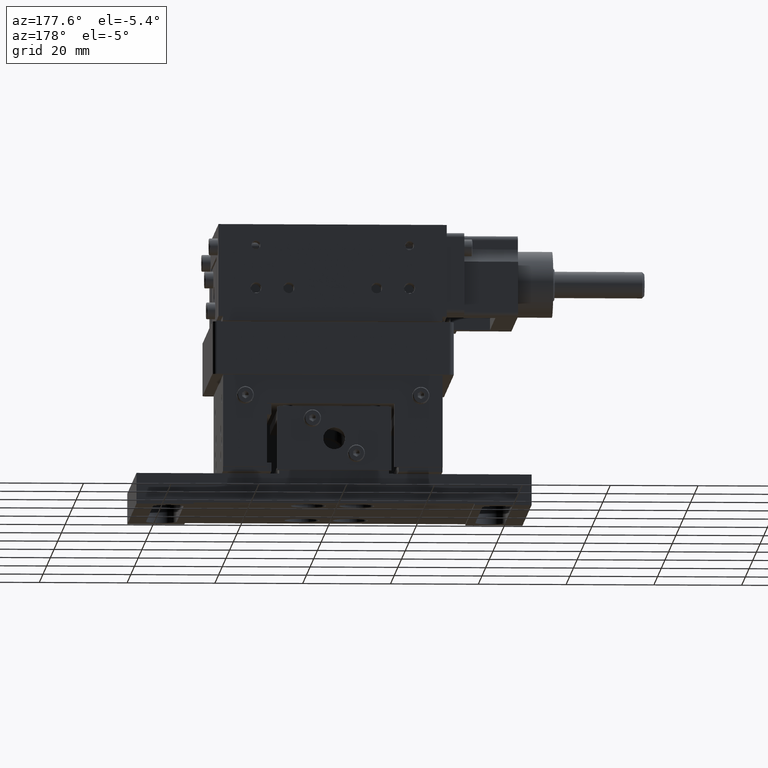
[diagram: clean part render]
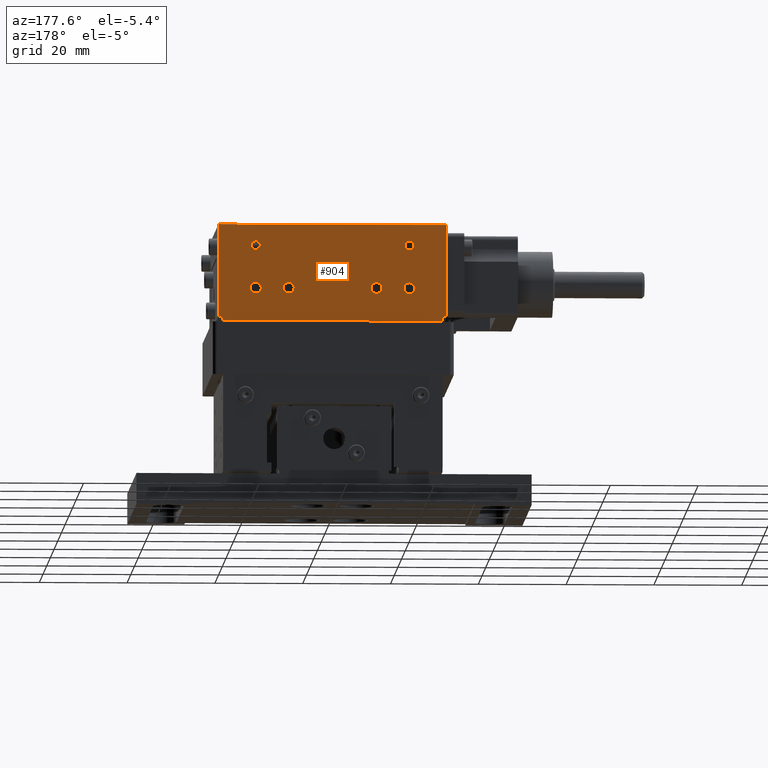
[diagram: same view with one face highlighted and labeled with its STEP entity id]
A machine part, auxiliary view. The second image highlights one B-rep face of the part: STEP entity #904.
In plain terms, the highlighted face is a freeform B-spline surface patch.
Its self-contained STEP definition (entity closure, byte-faithful):
#652=FACE_BOUND('',#3305,.T.);
#653=FACE_BOUND('',#3306,.T.);
#654=FACE_BOUND('',#3307,.T.);
#655=FACE_BOUND('',#3308,.T.);
#656=FACE_BOUND('',#3309,.T.);
#657=FACE_BOUND('',#3310,.T.);
#904=ADVANCED_FACE('',(#2088,#652,#653,#654,#655,#656,#657),#38479,.T.);
#2088=FACE_OUTER_BOUND('',#3304,.T.);
#3304=EDGE_LOOP('',(#5050,#5051,#5052,#5053,#5054,#5055,#5056,#5057));
#3305=EDGE_LOOP('',(#5058,#5059));
#3306=EDGE_LOOP('',(#5060,#5061));
#3307=EDGE_LOOP('',(#5062,#5063));
#3308=EDGE_LOOP('',(#5064,#5065));
#3309=EDGE_LOOP('',(#5066,#5067));
#3310=EDGE_LOOP('',(#5068,#5069));
#5050=ORIENTED_EDGE('',*,*,#31698,.F.);
#5051=ORIENTED_EDGE('',*,*,#31749,.T.);
#5052=ORIENTED_EDGE('',*,*,#31750,.T.);
#5053=ORIENTED_EDGE('',*,*,#31751,.T.);
#5054=ORIENTED_EDGE('',*,*,#31752,.T.);
#5055=ORIENTED_EDGE('',*,*,#31753,.T.);
#5056=ORIENTED_EDGE('',*,*,#31754,.T.);
#5057=ORIENTED_EDGE('',*,*,#31755,.T.);
#5058=ORIENTED_EDGE('',*,*,#31756,.T.);
#5059=ORIENTED_EDGE('',*,*,#31757,.T.);
#5060=ORIENTED_EDGE('',*,*,#31758,.T.);
#5061=ORIENTED_EDGE('',*,*,#31759,.T.);
#5062=ORIENTED_EDGE('',*,*,#31760,.T.);
#5063=ORIENTED_EDGE('',*,*,#31761,.T.);
#5064=ORIENTED_EDGE('',*,*,#31762,.T.);
#5065=ORIENTED_EDGE('',*,*,#31763,.T.);
#5066=ORIENTED_EDGE('',*,*,#31764,.T.);
#5067=ORIENTED_EDGE('',*,*,#31765,.T.);
#5068=ORIENTED_EDGE('',*,*,#31766,.T.);
#5069=ORIENTED_EDGE('',*,*,#31767,.T.);
#10777=PCURVE('',#38477,#16556);
#10829=PCURVE('',#38479,#16608);
#10830=PCURVE('',#38479,#16609);
#10831=PCURVE('',#38479,#16610);
#10832=PCURVE('',#38479,#16611);
#10833=PCURVE('',#38479,#16612);
#10834=PCURVE('',#38479,#16613);
#10835=PCURVE('',#38479,#16614);
#10836=PCURVE('',#38479,#16615);
#10837=PCURVE('',#38479,#16616);
#10838=PCURVE('',#38479,#16617);
#10839=PCURVE('',#38479,#16618);
#10840=PCURVE('',#38479,#16619);
#10841=PCURVE('',#38479,#16620);
#10842=PCURVE('',#38479,#16621);
#10843=PCURVE('',#38479,#16622);
#10844=PCURVE('',#38479,#16623);
#10845=PCURVE('',#38479,#16624);
#10846=PCURVE('',#38479,#16625);
#10847=PCURVE('',#38479,#16626);
#10848=PCURVE('',#38479,#16627);
#10854=PCURVE('',#38481,#16633);
#10909=PCURVE('',#38486,#16688);
#11075=PCURVE('',#38999,#16854);
#11084=PCURVE('',#39000,#16863);
#11090=PCURVE('',#39001,#16869);
#11098=PCURVE('',#39002,#16877);
#11154=PCURVE('',#39012,#16933);
#11156=PCURVE('',#39013,#16935);
#11189=PCURVE('',#39019,#16968);
#11191=PCURVE('',#39020,#16970);
#11335=PCURVE('',#39051,#17114);
#11339=PCURVE('',#39052,#17118);
#11342=PCURVE('',#38496,#17121);
#11360=PCURVE('',#38500,#17139);
#11387=PCURVE('',#38506,#17166);
#11430=PCURVE('',#38512,#17209);
#11443=PCURVE('',#38514,#17222);
#11526=PCURVE('',#39062,#17305);
#11530=PCURVE('',#39063,#17309);
#16556=DEFINITIONAL_REPRESENTATION('',(#22403),#87459);
#16608=DEFINITIONAL_REPRESENTATION('',(#22425),#87459);
#16609=DEFINITIONAL_REPRESENTATION('',(#22427),#87459);
#16610=DEFINITIONAL_REPRESENTATION('',(#22429),#87459);
#16611=DEFINITIONAL_REPRESENTATION('',(#22431),#87459);
#16612=DEFINITIONAL_REPRESENTATION('',(#22433),#87459);
#16613=DEFINITIONAL_REPRESENTATION('',(#22435),#87459);
#16614=DEFINITIONAL_REPRESENTATION('',(#22437),#87459);
#16615=DEFINITIONAL_REPRESENTATION('',(#22439),#87459);
#16616=DEFINITIONAL_REPRESENTATION('',(#34661),#87459);
#16617=DEFINITIONAL_REPRESENTATION('',(#34663),#87459);
#16618=DEFINITIONAL_REPRESENTATION('',(#34665),#87459);
#16619=DEFINITIONAL_REPRESENTATION('',(#34667),#87459);
#16620=DEFINITIONAL_REPRESENTATION('',(#34669),#87459);
#16621=DEFINITIONAL_REPRESENTATION('',(#34671),#87459);
#16622=DEFINITIONAL_REPRESENTATION('',(#34673),#87459);
#16623=DEFINITIONAL_REPRESENTATION('',(#34675),#87459);
#16624=DEFINITIONAL_REPRESENTATION('',(#34677),#87459);
#16625=DEFINITIONAL_REPRESENTATION('',(#34679),#87459);
#16626=DEFINITIONAL_REPRESENTATION('',(#34681),#87459);
#16627=DEFINITIONAL_REPRESENTATION('',(#34683),#87459);
#16633=DEFINITIONAL_REPRESENTATION('',(#22449),#87459);
#16688=DEFINITIONAL_REPRESENTATION('',(#22505),#87459);
#16854=DEFINITIONAL_REPRESENTATION('',(#22713),#87459);
#16863=DEFINITIONAL_REPRESENTATION('',(#22728),#87459);
#16869=DEFINITIONAL_REPRESENTATION('',(#22736),#87459);
#16877=DEFINITIONAL_REPRESENTATION('',(#22749),#87459);
#16933=DEFINITIONAL_REPRESENTATION('',(#22825),#87459);
#16935=DEFINITIONAL_REPRESENTATION('',(#22827),#87459);
#16968=DEFINITIONAL_REPRESENTATION('',(#22870),#87459);
#16970=DEFINITIONAL_REPRESENTATION('',(#22872),#87459);
#17114=DEFINITIONAL_REPRESENTATION('',(#23063),#87459);
#17118=DEFINITIONAL_REPRESENTATION('',(#23069),#87459);
#17121=DEFINITIONAL_REPRESENTATION('',(#23074),#87459);
#17139=DEFINITIONAL_REPRESENTATION('',(#23098),#87459);
#17166=DEFINITIONAL_REPRESENTATION('',(#23128),#87459);
#17209=DEFINITIONAL_REPRESENTATION('',(#23174),#87459);
#17222=DEFINITIONAL_REPRESENTATION('',(#23184),#87459);
#17305=DEFINITIONAL_REPRESENTATION('',(#23265),#87459);
#17309=DEFINITIONAL_REPRESENTATION('',(#23269),#87459);
#22402=B_SPLINE_CURVE_WITH_KNOTS('',1,(#44672,#44673),.UNSPECIFIED.,.F.,
 .F.,(2,2),(0.,51.9999999999997),.UNSPECIFIED.);
#22403=B_SPLINE_CURVE_WITH_KNOTS('',1,(#44674,#44675),.UNSPECIFIED.,.F.,
 .F.,(2,2),(0.,51.9999999999997),.UNSPECIFIED.);
#22425=B_SPLINE_CURVE_WITH_KNOTS('',1,(#45118,#45119),.UNSPECIFIED.,.F.,
 .F.,(2,2),(0.,51.9999999999997),.UNSPECIFIED.);
#22426=B_SPLINE_CURVE_WITH_KNOTS('',1,(#45120,#45121),.UNSPECIFIED.,.F.,
 .F.,(2,2),(0.,21.),.UNSPECIFIED.);
#22427=B_SPLINE_CURVE_WITH_KNOTS('',1,(#45122,#45123),.UNSPECIFIED.,.F.,
 .F.,(2,2),(0.,21.),.UNSPECIFIED.);
#22428=B_SPLINE_CURVE_WITH_KNOTS('',1,(#45124,#45125),.UNSPECIFIED.,.F.,
 .F.,(2,2),(0.,1.),.UNSPECIFIED.);
#22429=B_SPLINE_CURVE_WITH_KNOTS('',1,(#45126,#45127),.UNSPECIFIED.,.F.,
 .F.,(2,2),(0.,1.),.UNSPECIFIED.);
#22430=B_SPLINE_CURVE_WITH_KNOTS('',1,(#45128,#45129),.UNSPECIFIED.,.F.,
 .F.,(2,2),(-0.999999999999901,0.),.UNSPECIFIED.);
#22431=B_SPLINE_CURVE_WITH_KNOTS('',1,(#45130,#45131),.UNSPECIFIED.,.F.,
 .F.,(2,2),(-0.999999999999901,0.),.UNSPECIFIED.);
#22432=B_SPLINE_CURVE_WITH_KNOTS('',1,(#45132,#45133),.UNSPECIFIED.,.F.,
 .F.,(2,2),(-50.,0.),.UNSPECIFIED.);
#22433=B_SPLINE_CURVE_WITH_KNOTS('',1,(#45134,#45135),.UNSPECIFIED.,.F.,
 .F.,(2,2),(-50.,0.),.UNSPECIFIED.);
#22434=B_SPLINE_CURVE_WITH_KNOTS('',1,(#45136,#45137),.UNSPECIFIED.,.F.,
 .F.,(2,2),(0.,1.),.UNSPECIFIED.);
#22435=B_SPLINE_CURVE_WITH_KNOTS('',1,(#45138,#45139),.UNSPECIFIED.,.F.,
 .F.,(2,2),(0.,1.),.UNSPECIFIED.);
#22436=B_SPLINE_CURVE_WITH_KNOTS('',1,(#45140,#45141),.UNSPECIFIED.,.F.,
 .F.,(2,2),(0.,1.),.UNSPECIFIED.);
#22437=B_SPLINE_CURVE_WITH_KNOTS('',1,(#45142,#45143),.UNSPECIFIED.,.F.,
 .F.,(2,2),(0.,1.),.UNSPECIFIED.);
#22438=B_SPLINE_CURVE_WITH_KNOTS('',1,(#45144,#45145),.UNSPECIFIED.,.F.,
 .F.,(2,2),(0.,21.),.UNSPECIFIED.);
#22439=B_SPLINE_CURVE_WITH_KNOTS('',1,(#45146,#45147),.UNSPECIFIED.,.F.,
 .F.,(2,2),(0.,21.),.UNSPECIFIED.);
#22449=B_SPLINE_CURVE_WITH_KNOTS('',1,(#45286,#45287),.UNSPECIFIED.,.F.,
 .F.,(2,2),(-50.,0.),.UNSPECIFIED.);
#22505=B_SPLINE_CURVE_WITH_KNOTS('',1,(#45638,#45639),.UNSPECIFIED.,.F.,
 .F.,(2,2),(-0.999999999999901,0.),.UNSPECIFIED.);
#22713=B_SPLINE_CURVE_WITH_KNOTS('',1,(#46186,#46187),.UNSPECIFIED.,.F.,
 .F.,(2,2),(1.93129408379433,7.7251763351773),.UNSPECIFIED.);
#22728=B_SPLINE_CURVE_WITH_KNOTS('',1,(#46265,#46266),.UNSPECIFIED.,.F.,
 .F.,(2,2),(0.,1.93129408379433),.UNSPECIFIED.);
#22736=B_SPLINE_CURVE_WITH_KNOTS('',1,(#46296,#46297),.UNSPECIFIED.,.F.,
 .F.,(2,2),(1.93129408379431,7.7251763351773),.UNSPECIFIED.);
#22749=B_SPLINE_CURVE_WITH_KNOTS('',1,(#46367,#46368),.UNSPECIFIED.,.F.,
 .F.,(2,2),(0.,1.93129408379431),.UNSPECIFIED.);
#22825=B_SPLINE_CURVE_WITH_KNOTS('',1,(#46659,#46660),.UNSPECIFIED.,.F.,
 .F.,(2,2),(1.57079632679489,6.28318530717959),.UNSPECIFIED.);
#22827=B_SPLINE_CURVE_WITH_KNOTS('',1,(#46663,#46664),.UNSPECIFIED.,.F.,
 .F.,(2,2),(0.,1.57079632679489),.UNSPECIFIED.);
#22870=B_SPLINE_CURVE_WITH_KNOTS('',1,(#46812,#46813),.UNSPECIFIED.,.F.,
 .F.,(2,2),(1.5707963267949,6.28318530717959),.UNSPECIFIED.);
#22872=B_SPLINE_CURVE_WITH_KNOTS('',1,(#46816,#46817),.UNSPECIFIED.,.F.,
 .F.,(2,2),(0.,1.5707963267949),.UNSPECIFIED.);
#23063=B_SPLINE_CURVE_WITH_KNOTS('',1,(#47599,#47600),.UNSPECIFIED.,.F.,
 .F.,(2,2),(3.86415896391544,7.72831792783089),.UNSPECIFIED.);
#23069=B_SPLINE_CURVE_WITH_KNOTS('',1,(#47616,#47617),.UNSPECIFIED.,.F.,
 .F.,(2,2),(3.86415896391545,7.72831792783089),.UNSPECIFIED.);
#23074=B_SPLINE_CURVE_WITH_KNOTS('',1,(#47626,#47627),.UNSPECIFIED.,.F.,
 .F.,(2,2),(0.,1.),.UNSPECIFIED.);
#23098=B_SPLINE_CURVE_WITH_KNOTS('',1,(#47674,#47675),.UNSPECIFIED.,.F.,
 .F.,(2,2),(0.,1.),.UNSPECIFIED.);
#23128=B_SPLINE_CURVE_WITH_KNOTS('',1,(#47754,#47755),.UNSPECIFIED.,.F.,
 .F.,(2,2),(0.,21.),.UNSPECIFIED.);
#23174=B_SPLINE_CURVE_WITH_KNOTS('',1,(#47878,#47879),.UNSPECIFIED.,.F.,
 .F.,(2,2),(0.,21.),.UNSPECIFIED.);
#23184=B_SPLINE_CURVE_WITH_KNOTS('',1,(#47938,#47939),.UNSPECIFIED.,.F.,
 .F.,(2,2),(0.,1.),.UNSPECIFIED.);
#23265=B_SPLINE_CURVE_WITH_KNOTS('',1,(#48242,#48243),.UNSPECIFIED.,.F.,
 .F.,(2,2),(0.,3.86415896391544),.UNSPECIFIED.);
#23269=B_SPLINE_CURVE_WITH_KNOTS('',1,(#48250,#48251),.UNSPECIFIED.,.F.,
 .F.,(2,2),(0.,3.86415896391545),.UNSPECIFIED.);
#28749=SURFACE_CURVE('',#22402,(#10777,#10829),.PCURVE_S1.);
#28800=SURFACE_CURVE('',#22426,(#10830,#11430),.PCURVE_S1.);
#28801=SURFACE_CURVE('',#22428,(#10831,#11443),.PCURVE_S1.);
#28802=SURFACE_CURVE('',#22430,(#10832,#10909),.PCURVE_S1.);
#28803=SURFACE_CURVE('',#22432,(#10833,#10854),.PCURVE_S1.);
#28804=SURFACE_CURVE('',#22434,(#10834,#11342),.PCURVE_S1.);
#28805=SURFACE_CURVE('',#22436,(#10835,#11360),.PCURVE_S1.);
#28806=SURFACE_CURVE('',#22438,(#10836,#11387),.PCURVE_S1.);
#28807=SURFACE_CURVE('',#34660,(#10837,#11530),.PCURVE_S1.);
#28808=SURFACE_CURVE('',#34662,(#10838,#11339),.PCURVE_S1.);
#28809=SURFACE_CURVE('',#34664,(#10839,#11526),.PCURVE_S1.);
#28810=SURFACE_CURVE('',#34666,(#10840,#11335),.PCURVE_S1.);
#28811=SURFACE_CURVE('',#34668,(#10841,#11098),.PCURVE_S1.);
#28812=SURFACE_CURVE('',#34670,(#10842,#11090),.PCURVE_S1.);
#28813=SURFACE_CURVE('',#34672,(#10843,#11084),.PCURVE_S1.);
#28814=SURFACE_CURVE('',#34674,(#10844,#11075),.PCURVE_S1.);
#28815=SURFACE_CURVE('',#34676,(#10845,#11191),.PCURVE_S1.);
#28816=SURFACE_CURVE('',#34678,(#10846,#11189),.PCURVE_S1.);
#28817=SURFACE_CURVE('',#34680,(#10847,#11156),.PCURVE_S1.);
#28818=SURFACE_CURVE('',#34682,(#10848,#11154),.PCURVE_S1.);
#31698=EDGE_CURVE('',#36685,#36688,#28749,.T.);
#31749=EDGE_CURVE('',#36685,#36736,#28800,.T.);
#31750=EDGE_CURVE('',#36736,#36735,#28801,.T.);
#31751=EDGE_CURVE('',#36735,#36750,#28802,.T.);
#31752=EDGE_CURVE('',#36750,#36739,#28803,.T.);
#31753=EDGE_CURVE('',#36739,#36738,#28804,.T.);
#31754=EDGE_CURVE('',#36738,#36737,#28805,.T.);
#31755=EDGE_CURVE('',#36737,#36688,#28806,.T.);
#31756=EDGE_CURVE('',#36740,#36923,#28807,.T.);
#31757=EDGE_CURVE('',#36923,#36740,#28808,.T.);
#31758=EDGE_CURVE('',#36741,#36921,#28809,.T.);
#31759=EDGE_CURVE('',#36921,#36741,#28810,.T.);
#31760=EDGE_CURVE('',#36746,#36747,#28811,.T.);
#31761=EDGE_CURVE('',#36747,#36746,#28812,.T.);
#31762=EDGE_CURVE('',#36748,#36749,#28813,.T.);
#31763=EDGE_CURVE('',#36749,#36748,#28814,.T.);
#31764=EDGE_CURVE('',#36742,#36743,#28815,.T.);
#31765=EDGE_CURVE('',#36743,#36742,#28816,.T.);
#31766=EDGE_CURVE('',#36744,#36745,#28817,.T.);
#31767=EDGE_CURVE('',#36745,#36744,#28818,.T.);
#34660=(
BOUNDED_CURVE()
B_SPLINE_CURVE(2,(#45148,#45149,#45150,#45151,#45152),.UNSPECIFIED.,.F.,
 .F.)
B_SPLINE_CURVE_WITH_KNOTS((3,2,3),(0.,1.93207948195772,3.86415896391545),
 .UNSPECIFIED.)
CURVE()
GEOMETRIC_REPRESENTATION_ITEM()
RATIONAL_B_SPLINE_CURVE((1.,0.707106781186546,1.,0.707106781186545,1.))
REPRESENTATION_ITEM('')
);
#34661=(
BOUNDED_CURVE()
B_SPLINE_CURVE(2,(#45153,#45154,#45155,#45156,#45157),.UNSPECIFIED.,.F.,
 .F.)
B_SPLINE_CURVE_WITH_KNOTS((3,2,3),(0.,1.93207994260142,3.86415896391545),
 .UNSPECIFIED.)
CURVE()
GEOMETRIC_REPRESENTATION_ITEM()
RATIONAL_B_SPLINE_CURVE((1.,0.707106781186548,1.,0.707107019605091,1.))
REPRESENTATION_ITEM('')
);
#34662=(
BOUNDED_CURVE()
B_SPLINE_CURVE(2,(#45158,#45159,#45160,#45161,#45162),.UNSPECIFIED.,.F.,
 .F.)
B_SPLINE_CURVE_WITH_KNOTS((3,2,3),(3.86415896391545,5.79623844587317,7.72831792783089),
 .UNSPECIFIED.)
CURVE()
GEOMETRIC_REPRESENTATION_ITEM()
RATIONAL_B_SPLINE_CURVE((1.,0.70710678118655,1.,0.707106781186549,1.))
REPRESENTATION_ITEM('')
);
#34663=(
BOUNDED_CURVE()
B_SPLINE_CURVE(2,(#45163,#45164,#45165,#45166,#45167),.UNSPECIFIED.,.F.,
 .F.)
B_SPLINE_CURVE_WITH_KNOTS((3,2,3),(3.86415896391545,5.79623844587317,7.72831792783089),
 .UNSPECIFIED.)
CURVE()
GEOMETRIC_REPRESENTATION_ITEM()
RATIONAL_B_SPLINE_CURVE((1.,0.707106781186548,1.,0.707106781186548,1.))
REPRESENTATION_ITEM('')
);
#34664=(
BOUNDED_CURVE()
B_SPLINE_CURVE(2,(#45168,#45169,#45170,#45171,#45172),.UNSPECIFIED.,.F.,
 .F.)
B_SPLINE_CURVE_WITH_KNOTS((3,2,3),(0.,1.93207948195772,3.86415896391544),
 .UNSPECIFIED.)
CURVE()
GEOMETRIC_REPRESENTATION_ITEM()
RATIONAL_B_SPLINE_CURVE((1.,0.707106781186546,1.,0.707106781186548,1.))
REPRESENTATION_ITEM('')
);
#34665=(
BOUNDED_CURVE()
B_SPLINE_CURVE(2,(#45173,#45174,#45175,#45176,#45177),.UNSPECIFIED.,.F.,
 .F.)
B_SPLINE_CURVE_WITH_KNOTS((3,2,3),(0.,1.93207948195772,3.86415896391544),
 .UNSPECIFIED.)
CURVE()
GEOMETRIC_REPRESENTATION_ITEM()
RATIONAL_B_SPLINE_CURVE((1.,0.707106781186548,1.,0.70710678118655,1.))
REPRESENTATION_ITEM('')
);
#34666=(
BOUNDED_CURVE()
B_SPLINE_CURVE(2,(#45178,#45179,#45180,#45181,#45182),.UNSPECIFIED.,.F.,
 .F.)
B_SPLINE_CURVE_WITH_KNOTS((3,2,3),(3.86415896391544,5.79623844587317,7.72831792783089),
 .UNSPECIFIED.)
CURVE()
GEOMETRIC_REPRESENTATION_ITEM()
RATIONAL_B_SPLINE_CURVE((1.,0.707106781186548,1.,0.70710678118655,1.))
REPRESENTATION_ITEM('')
);
#34667=(
BOUNDED_CURVE()
B_SPLINE_CURVE(2,(#45183,#45184,#45185,#45186,#45187),.UNSPECIFIED.,.F.,
 .F.)
B_SPLINE_CURVE_WITH_KNOTS((3,2,3),(3.86415896391544,5.79623844587317,7.72831792783089),
 .UNSPECIFIED.)
CURVE()
GEOMETRIC_REPRESENTATION_ITEM()
RATIONAL_B_SPLINE_CURVE((1.,0.707106781186545,1.,0.707106781186548,1.))
REPRESENTATION_ITEM('')
);
#34668=(
BOUNDED_CURVE()
B_SPLINE_CURVE(2,(#45188,#45189,#45190),.UNSPECIFIED.,.F.,.F.)
B_SPLINE_CURVE_WITH_KNOTS((3,3),(0.,1.93129408379431),.UNSPECIFIED.)
CURVE()
GEOMETRIC_REPRESENTATION_ITEM()
RATIONAL_B_SPLINE_CURVE((1.,0.707106781186545,1.))
REPRESENTATION_ITEM('')
);
#34669=(
BOUNDED_CURVE()
B_SPLINE_CURVE(2,(#45191,#45192,#45193),.UNSPECIFIED.,.F.,.F.)
B_SPLINE_CURVE_WITH_KNOTS((3,3),(0.,1.93129408379431),.UNSPECIFIED.)
CURVE()
GEOMETRIC_REPRESENTATION_ITEM()
RATIONAL_B_SPLINE_CURVE((1.,0.707106781186547,1.))
REPRESENTATION_ITEM('')
);
#34670=(
BOUNDED_CURVE()
B_SPLINE_CURVE(2,(#45194,#45195,#45196,#45197,#45198,#45199,#45200),
 .UNSPECIFIED.,.F.,.F.)
B_SPLINE_CURVE_WITH_KNOTS((3,2,2,3),(1.93129408379431,3.86258816758865,
5.79388225138298,7.7251763351773),.UNSPECIFIED.)
CURVE()
GEOMETRIC_REPRESENTATION_ITEM()
RATIONAL_B_SPLINE_CURVE((1.,0.707106781186543,1.,0.707106781186549,1.,0.707106781186549,
1.))
REPRESENTATION_ITEM('')
);
#34671=(
BOUNDED_CURVE()
B_SPLINE_CURVE(2,(#45201,#45202,#45203,#45204,#45205,#45206,#45207),
 .UNSPECIFIED.,.F.,.F.)
B_SPLINE_CURVE_WITH_KNOTS((3,2,2,3),(1.93129408379431,3.86258816758864,
5.79388225138297,7.7251763351773),.UNSPECIFIED.)
CURVE()
GEOMETRIC_REPRESENTATION_ITEM()
RATIONAL_B_SPLINE_CURVE((1.,0.707106781186548,1.,0.707106781186548,1.,0.707106781186548,
1.))
REPRESENTATION_ITEM('')
);
#34672=(
BOUNDED_CURVE()
B_SPLINE_CURVE(2,(#45208,#45209,#45210),.UNSPECIFIED.,.F.,.F.)
B_SPLINE_CURVE_WITH_KNOTS((3,3),(0.,1.93129408379433),.UNSPECIFIED.)
CURVE()
GEOMETRIC_REPRESENTATION_ITEM()
RATIONAL_B_SPLINE_CURVE((1.,0.707106781186545,1.))
REPRESENTATION_ITEM('')
);
#34673=(
BOUNDED_CURVE()
B_SPLINE_CURVE(2,(#45211,#45212,#45213),.UNSPECIFIED.,.F.,.F.)
B_SPLINE_CURVE_WITH_KNOTS((3,3),(0.,1.93129408379433),.UNSPECIFIED.)
CURVE()
GEOMETRIC_REPRESENTATION_ITEM()
RATIONAL_B_SPLINE_CURVE((1.,0.707106781186548,1.))
REPRESENTATION_ITEM('')
);
#34674=(
BOUNDED_CURVE()
B_SPLINE_CURVE(2,(#45214,#45215,#45216,#45217,#45218,#45219,#45220),
 .UNSPECIFIED.,.F.,.F.)
B_SPLINE_CURVE_WITH_KNOTS((3,2,2,3),(1.93129408379433,3.86258816758865,
5.79388225138298,7.7251763351773),.UNSPECIFIED.)
CURVE()
GEOMETRIC_REPRESENTATION_ITEM()
RATIONAL_B_SPLINE_CURVE((1.,0.707106781186541,1.,0.707106781186549,1.,0.707106781186549,
1.))
REPRESENTATION_ITEM('')
);
#34675=(
BOUNDED_CURVE()
B_SPLINE_CURVE(2,(#45221,#45222,#45223,#45224,#45225,#45226,#45227),
 .UNSPECIFIED.,.F.,.F.)
B_SPLINE_CURVE_WITH_KNOTS((3,2,2,3),(1.93129408379433,3.86258816758865,
5.79388225138298,7.7251763351773),.UNSPECIFIED.)
CURVE()
GEOMETRIC_REPRESENTATION_ITEM()
RATIONAL_B_SPLINE_CURVE((1.,0.707106781186548,1.,0.707106781186548,1.,0.707106781186548,
1.))
REPRESENTATION_ITEM('')
);
#34676=(
BOUNDED_CURVE()
B_SPLINE_CURVE(2,(#45228,#45229,#45230),.UNSPECIFIED.,.F.,.F.)
B_SPLINE_CURVE_WITH_KNOTS((3,3),(0.,1.5707963267949),.UNSPECIFIED.)
CURVE()
GEOMETRIC_REPRESENTATION_ITEM()
RATIONAL_B_SPLINE_CURVE((1.,0.707106781186546,1.))
REPRESENTATION_ITEM('')
);
#34677=(
BOUNDED_CURVE()
B_SPLINE_CURVE(2,(#45231,#45232,#45233),.UNSPECIFIED.,.F.,.F.)
B_SPLINE_CURVE_WITH_KNOTS((3,3),(0.,1.5707963267949),.UNSPECIFIED.)
CURVE()
GEOMETRIC_REPRESENTATION_ITEM()
RATIONAL_B_SPLINE_CURVE((1.,0.707106781186545,1.))
REPRESENTATION_ITEM('')
);
#34678=(
BOUNDED_CURVE()
B_SPLINE_CURVE(2,(#45234,#45235,#45236,#45237,#45238,#45239,#45240),
 .UNSPECIFIED.,.F.,.F.)
B_SPLINE_CURVE_WITH_KNOTS((3,2,2,3),(1.5707963267949,3.14159265358979,4.71238898038469,
6.28318530717959),.UNSPECIFIED.)
CURVE()
GEOMETRIC_REPRESENTATION_ITEM()
RATIONAL_B_SPLINE_CURVE((1.,0.707106781186551,1.,0.707106781186544,1.,0.707106781186544,
1.))
REPRESENTATION_ITEM('')
);
#34679=(
BOUNDED_CURVE()
B_SPLINE_CURVE(2,(#45241,#45242,#45243,#45244,#45245,#45246,#45247),
 .UNSPECIFIED.,.F.,.F.)
B_SPLINE_CURVE_WITH_KNOTS((3,2,2,3),(1.5707963267949,3.14159265358979,4.71238898038469,
6.28318530717959),.UNSPECIFIED.)
CURVE()
GEOMETRIC_REPRESENTATION_ITEM()
RATIONAL_B_SPLINE_CURVE((1.,0.707106781186551,1.,0.707106781186548,1.,0.707106781186548,
1.))
REPRESENTATION_ITEM('')
);
#34680=(
BOUNDED_CURVE()
B_SPLINE_CURVE(2,(#45248,#45249,#45250),.UNSPECIFIED.,.F.,.F.)
B_SPLINE_CURVE_WITH_KNOTS((3,3),(0.,1.57079632679489),.UNSPECIFIED.)
CURVE()
GEOMETRIC_REPRESENTATION_ITEM()
RATIONAL_B_SPLINE_CURVE((1.,0.707106781186551,1.))
REPRESENTATION_ITEM('')
);
#34681=(
BOUNDED_CURVE()
B_SPLINE_CURVE(2,(#45251,#45252,#45253),.UNSPECIFIED.,.F.,.F.)
B_SPLINE_CURVE_WITH_KNOTS((3,3),(0.,1.57079632679489),.UNSPECIFIED.)
CURVE()
GEOMETRIC_REPRESENTATION_ITEM()
RATIONAL_B_SPLINE_CURVE((1.,0.707106781186548,1.))
REPRESENTATION_ITEM('')
);
#34682=(
BOUNDED_CURVE()
B_SPLINE_CURVE(2,(#45254,#45255,#45256,#45257,#45258,#45259,#45260),
 .UNSPECIFIED.,.F.,.F.)
B_SPLINE_CURVE_WITH_KNOTS((3,2,2,3),(1.57079632679489,3.14159265358979,
4.71238898038469,6.28318530717959),.UNSPECIFIED.)
CURVE()
GEOMETRIC_REPRESENTATION_ITEM()
RATIONAL_B_SPLINE_CURVE((1.,0.707106781186544,1.,0.707106781186543,1.,0.707106781186543,
1.))
REPRESENTATION_ITEM('')
);
#34683=(
BOUNDED_CURVE()
B_SPLINE_CURVE(2,(#45261,#45262,#45263,#45264,#45265,#45266,#45267),
 .UNSPECIFIED.,.F.,.F.)
B_SPLINE_CURVE_WITH_KNOTS((3,2,2,3),(1.57079632679489,3.14159265358979,
4.71238898038469,6.28318530717959),.UNSPECIFIED.)
CURVE()
GEOMETRIC_REPRESENTATION_ITEM()
RATIONAL_B_SPLINE_CURVE((1.,0.707106781186548,1.,0.707106781186548,1.,0.707106781186548,
1.))
REPRESENTATION_ITEM('')
);
#36685=VERTEX_POINT('',#42721);
#36688=VERTEX_POINT('',#42724);
#36735=VERTEX_POINT('',#42771);
#36736=VERTEX_POINT('',#42772);
#36737=VERTEX_POINT('',#42773);
#36738=VERTEX_POINT('',#42774);
#36739=VERTEX_POINT('',#42775);
#36740=VERTEX_POINT('',#42776);
#36741=VERTEX_POINT('',#42777);
#36742=VERTEX_POINT('',#42778);
#36743=VERTEX_POINT('',#42779);
#36744=VERTEX_POINT('',#42780);
#36745=VERTEX_POINT('',#42781);
#36746=VERTEX_POINT('',#42782);
#36747=VERTEX_POINT('',#42783);
#36748=VERTEX_POINT('',#42784);
#36749=VERTEX_POINT('',#42785);
#36750=VERTEX_POINT('',#42786);
#36921=VERTEX_POINT('',#42957);
#36923=VERTEX_POINT('',#42959);
#38477=B_SPLINE_SURFACE_WITH_KNOTS('',1,1,((#40621,#40622),(#40623,#40624)),
 .UNSPECIFIED.,.F.,.F.,.F.,(2,2),(2,2),(-30.1200000000002,30.12),(-31.3199999999999,
31.3199999999998),.UNSPECIFIED.);
#38479=B_SPLINE_SURFACE_WITH_KNOTS('',1,1,((#40629,#40630),(#40631,#40632)),
 .UNSPECIFIED.,.F.,.F.,.F.,(2,2),(2,2),(-24.3200000000001,2.32000000000001),
(-56.3199999999999,6.31999999999981),.UNSPECIFIED.);
#38481=B_SPLINE_SURFACE_WITH_KNOTS('',1,1,((#40637,#40638),(#40639,#40640)),
 .UNSPECIFIED.,.F.,.F.,.F.,(2,2),(2,2),(-30.12,30.12),(13.8799999999999,
26.1200000000001),.UNSPECIFIED.);
#38486=B_SPLINE_SURFACE_WITH_KNOTS('',1,1,((#40657,#40658),(#40659,#40660)),
 .UNSPECIFIED.,.F.,.F.,.F.,(2,2),(2,2),(-1.21999999999991,0.219999999999994),
(-11.12,1.12),.UNSPECIFIED.);
#38496=B_SPLINE_SURFACE_WITH_KNOTS('',1,1,((#42265,#42266),(#42267,#42268)),
 .UNSPECIFIED.,.F.,.F.,.F.,(2,2),(2,2),(-0.219999999999993,1.22000000000003),
(38.88,51.12),.UNSPECIFIED.);
#38500=B_SPLINE_SURFACE_WITH_KNOTS('',1,1,((#42281,#42282),(#42283,#42284)),
 .UNSPECIFIED.,.F.,.F.,.F.,(2,2),(2,2),(-0.220000000000003,1.22000000000001),
(-1.22000000000001,12.2200000000001),.UNSPECIFIED.);
#38506=B_SPLINE_SURFACE_WITH_KNOTS('',1,1,((#42305,#42306),(#42307,#42308)),
 .UNSPECIFIED.,.F.,.F.,.F.,(2,2),(2,2),(-14.6278947368423,10.8121052631581),
(-30.0352046783626,30.2047953216375),.UNSPECIFIED.);
#38512=B_SPLINE_SURFACE_WITH_KNOTS('',1,1,((#42329,#42330),(#42331,#42332)),
 .UNSPECIFIED.,.F.,.F.,.F.,(2,2),(2,2),(-30.0352046783626,30.2047953216376),
(-14.6278947368423,10.812105263158),.UNSPECIFIED.);
#38514=B_SPLINE_SURFACE_WITH_KNOTS('',1,1,((#42337,#42338),(#42339,#42340)),
 .UNSPECIFIED.,.F.,.F.,.F.,(2,2),(2,2),(-0.220000000000003,1.22000000000001),
(-1.22000000000001,12.2200000000001),.UNSPECIFIED.);
#38999=(
BOUNDED_SURFACE()
B_SPLINE_SURFACE(1,2,((#41309,#41310,#41311,#41312,#41313,#41314,#41315,
#41316,#41317),(#41318,#41319,#41320,#41321,#41322,#41323,#41324,#41325,
#41326)),.UNSPECIFIED.,.F.,.F.,.F.)
B_SPLINE_SURFACE_WITH_KNOTS((2,2),(3,2,2,2,3),(0.,6.24000000000002),(0.,
1.5707963267949,3.14159265358979,4.71238898038469,6.28318530717959),
 .UNSPECIFIED.)
GEOMETRIC_REPRESENTATION_ITEM()
RATIONAL_B_SPLINE_SURFACE(((1.,0.707106781186548,1.,0.707106781186548,1.,
0.707106781186548,1.,0.707106781186548,1.),(1.,0.707106781186548,1.,0.707106781186548,
1.,0.707106781186548,1.,0.707106781186548,1.)))
REPRESENTATION_ITEM('')
SURFACE()
);
#39000=(
BOUNDED_SURFACE()
B_SPLINE_SURFACE(1,2,((#41327,#41328,#41329,#41330,#41331,#41332,#41333,
#41334,#41335),(#41336,#41337,#41338,#41339,#41340,#41341,#41342,#41343,
#41344)),.UNSPECIFIED.,.F.,.F.,.F.)
B_SPLINE_SURFACE_WITH_KNOTS((2,2),(3,2,2,2,3),(0.,6.24000000000002),(0.,
1.5707963267949,3.14159265358979,4.71238898038469,6.28318530717959),
 .UNSPECIFIED.)
GEOMETRIC_REPRESENTATION_ITEM()
RATIONAL_B_SPLINE_SURFACE(((1.,0.707106781186548,1.,0.707106781186548,1.,
0.707106781186548,1.,0.707106781186548,1.),(1.,0.707106781186548,1.,0.707106781186548,
1.,0.707106781186548,1.,0.707106781186548,1.)))
REPRESENTATION_ITEM('')
SURFACE()
);
#39001=(
BOUNDED_SURFACE()
B_SPLINE_SURFACE(1,2,((#41345,#41346,#41347,#41348,#41349,#41350,#41351,
#41352,#41353),(#41354,#41355,#41356,#41357,#41358,#41359,#41360,#41361,
#41362)),.UNSPECIFIED.,.F.,.F.,.F.)
B_SPLINE_SURFACE_WITH_KNOTS((2,2),(3,2,2,2,3),(0.,6.24000000000002),(0.,
1.5707963267949,3.14159265358979,4.71238898038469,6.28318530717959),
 .UNSPECIFIED.)
GEOMETRIC_REPRESENTATION_ITEM()
RATIONAL_B_SPLINE_SURFACE(((1.,0.707106781186548,1.,0.707106781186548,1.,
0.707106781186548,1.,0.707106781186548,1.),(1.,0.707106781186548,1.,0.707106781186548,
1.,0.707106781186548,1.,0.707106781186548,1.)))
REPRESENTATION_ITEM('')
SURFACE()
);
#39002=(
BOUNDED_SURFACE()
B_SPLINE_SURFACE(1,2,((#41363,#41364,#41365,#41366,#41367,#41368,#41369,
#41370,#41371),(#41372,#41373,#41374,#41375,#41376,#41377,#41378,#41379,
#41380)),.UNSPECIFIED.,.F.,.F.,.F.)
B_SPLINE_SURFACE_WITH_KNOTS((2,2),(3,2,2,2,3),(0.,6.24000000000002),(0.,
1.5707963267949,3.14159265358979,4.71238898038469,6.28318530717959),
 .UNSPECIFIED.)
GEOMETRIC_REPRESENTATION_ITEM()
RATIONAL_B_SPLINE_SURFACE(((1.,0.707106781186548,1.,0.707106781186548,1.,
0.707106781186548,1.,0.707106781186548,1.),(1.,0.707106781186548,1.,0.707106781186548,
1.,0.707106781186548,1.,0.707106781186548,1.)))
REPRESENTATION_ITEM('')
SURFACE()
);
#39012=(
BOUNDED_SURFACE()
B_SPLINE_SURFACE(1,2,((#41543,#41544,#41545,#41546,#41547,#41548,#41549,
#41550,#41551),(#41552,#41553,#41554,#41555,#41556,#41557,#41558,#41559,
#41560)),.UNSPECIFIED.,.F.,.F.,.F.)
B_SPLINE_SURFACE_WITH_KNOTS((2,2),(3,2,2,2,3),(0.,6.24000000000002),(0.,
1.5707963267949,3.14159265358979,4.71238898038469,6.28318530717959),
 .UNSPECIFIED.)
GEOMETRIC_REPRESENTATION_ITEM()
RATIONAL_B_SPLINE_SURFACE(((1.,0.707106781186548,1.,0.707106781186548,1.,
0.707106781186548,1.,0.707106781186548,1.),(1.,0.707106781186548,1.,0.707106781186548,
1.,0.707106781186548,1.,0.707106781186548,1.)))
REPRESENTATION_ITEM('')
SURFACE()
);
#39013=(
BOUNDED_SURFACE()
B_SPLINE_SURFACE(1,2,((#41561,#41562,#41563,#41564,#41565,#41566,#41567,
#41568,#41569),(#41570,#41571,#41572,#41573,#41574,#41575,#41576,#41577,
#41578)),.UNSPECIFIED.,.F.,.F.,.F.)
B_SPLINE_SURFACE_WITH_KNOTS((2,2),(3,2,2,2,3),(0.,6.24000000000002),(0.,
1.5707963267949,3.14159265358979,4.71238898038469,6.28318530717959),
 .UNSPECIFIED.)
GEOMETRIC_REPRESENTATION_ITEM()
RATIONAL_B_SPLINE_SURFACE(((1.,0.707106781186548,1.,0.707106781186548,1.,
0.707106781186548,1.,0.707106781186548,1.),(1.,0.707106781186548,1.,0.707106781186548,
1.,0.707106781186548,1.,0.707106781186548,1.)))
REPRESENTATION_ITEM('')
SURFACE()
);
#39019=(
BOUNDED_SURFACE()
B_SPLINE_SURFACE(1,2,((#41669,#41670,#41671,#41672,#41673,#41674,#41675,
#41676,#41677),(#41678,#41679,#41680,#41681,#41682,#41683,#41684,#41685,
#41686)),.UNSPECIFIED.,.F.,.F.,.F.)
B_SPLINE_SURFACE_WITH_KNOTS((2,2),(3,2,2,2,3),(0.,6.23999999999905),(0.,
1.5707963267949,3.14159265358979,4.71238898038469,6.28318530717959),
 .UNSPECIFIED.)
GEOMETRIC_REPRESENTATION_ITEM()
RATIONAL_B_SPLINE_SURFACE(((1.,0.707106781186548,1.,0.707106781186548,1.,
0.707106781186548,1.,0.707106781186548,1.),(1.,0.707106781186548,1.,0.707106781186548,
1.,0.707106781186548,1.,0.707106781186548,1.)))
REPRESENTATION_ITEM('')
SURFACE()
);
#39020=(
BOUNDED_SURFACE()
B_SPLINE_SURFACE(1,2,((#41687,#41688,#41689,#41690,#41691,#41692,#41693,
#41694,#41695),(#41696,#41697,#41698,#41699,#41700,#41701,#41702,#41703,
#41704)),.UNSPECIFIED.,.F.,.F.,.F.)
B_SPLINE_SURFACE_WITH_KNOTS((2,2),(3,2,2,2,3),(0.,6.23999999999905),(0.,
1.5707963267949,3.14159265358979,4.71238898038469,6.28318530717959),
 .UNSPECIFIED.)
GEOMETRIC_REPRESENTATION_ITEM()
RATIONAL_B_SPLINE_SURFACE(((1.,0.707106781186548,1.,0.707106781186548,1.,
0.707106781186548,1.,0.707106781186548,1.),(1.,0.707106781186548,1.,0.707106781186548,
1.,0.707106781186548,1.,0.707106781186548,1.)))
REPRESENTATION_ITEM('')
SURFACE()
);
#39051=(
BOUNDED_SURFACE()
B_SPLINE_SURFACE(1,2,((#42245,#42246,#42247,#42248,#42249),(#42250,#42251,
#42252,#42253,#42254)),.UNSPECIFIED.,.F.,.F.,.F.)
B_SPLINE_SURFACE_WITH_KNOTS((2,2),(3,2,3),(0.,6.24000000000014),(0.,1.5707963267949,
3.14159265358979),.UNSPECIFIED.)
GEOMETRIC_REPRESENTATION_ITEM()
RATIONAL_B_SPLINE_SURFACE(((1.,0.707106781186548,1.,0.707106781186548,1.),
(1.,0.707106781186548,1.,0.707106781186548,1.)))
REPRESENTATION_ITEM('')
SURFACE()
);
#39052=(
BOUNDED_SURFACE()
B_SPLINE_SURFACE(1,2,((#42255,#42256,#42257,#42258,#42259),(#42260,#42261,
#42262,#42263,#42264)),.UNSPECIFIED.,.F.,.F.,.F.)
B_SPLINE_SURFACE_WITH_KNOTS((2,2),(3,2,3),(0.,6.24000000000002),(0.,1.5707963267949,
3.14159265358979),.UNSPECIFIED.)
GEOMETRIC_REPRESENTATION_ITEM()
RATIONAL_B_SPLINE_SURFACE(((1.,0.707106781186548,1.,0.707106781186548,1.),
(1.,0.707106781186548,1.,0.707106781186548,1.)))
REPRESENTATION_ITEM('')
SURFACE()
);
#39062=(
BOUNDED_SURFACE()
B_SPLINE_SURFACE(1,2,((#42547,#42548,#42549,#42550,#42551),(#42552,#42553,
#42554,#42555,#42556)),.UNSPECIFIED.,.F.,.F.,.F.)
B_SPLINE_SURFACE_WITH_KNOTS((2,2),(3,2,3),(0.,6.24000000000014),(3.14159265358979,
4.71238898038469,6.28318530717959),.UNSPECIFIED.)
GEOMETRIC_REPRESENTATION_ITEM()
RATIONAL_B_SPLINE_SURFACE(((1.,0.707106781186548,1.,0.707106781186548,1.),
(1.,0.707106781186548,1.,0.707106781186548,1.)))
REPRESENTATION_ITEM('')
SURFACE()
);
#39063=(
BOUNDED_SURFACE()
B_SPLINE_SURFACE(1,2,((#42557,#42558,#42559,#42560,#42561),(#42562,#42563,
#42564,#42565,#42566)),.UNSPECIFIED.,.F.,.F.,.F.)
B_SPLINE_SURFACE_WITH_KNOTS((2,2),(3,2,3),(0.,6.24000000000002),(3.14159265358979,
4.71238898038469,6.28318530717959),.UNSPECIFIED.)
GEOMETRIC_REPRESENTATION_ITEM()
RATIONAL_B_SPLINE_SURFACE(((1.,0.707106781186548,1.,0.707106781186548,1.),
(1.,0.707106781186548,1.,0.707106781186548,1.)))
REPRESENTATION_ITEM('')
SURFACE()
);
#40621=CARTESIAN_POINT('',(31.4035471895049,-30.1939224317624,64.5190559995546));
#40622=CARTESIAN_POINT('',(-31.2364528104948,-30.1939224317624,64.5190559995547));
#40623=CARTESIAN_POINT('',(31.4035471895049,30.0460775682378,64.5190559995547));
#40624=CARTESIAN_POINT('',(-31.2364528104948,30.0460775682378,64.5190559995548));
#40629=CARTESIAN_POINT('',(31.4035471895049,24.9260775682378,66.8390559995547));
#40630=CARTESIAN_POINT('',(-31.2364528104948,24.9260775682378,66.8390559995548));
#40631=CARTESIAN_POINT('',(31.4035471895049,24.9260775682378,40.1990559995546));
#40632=CARTESIAN_POINT('',(-31.2364528104948,24.9260775682379,40.1990559995547));
#40637=CARTESIAN_POINT('',(30.203547189505,13.8060775682377,42.5190559995547));
#40638=CARTESIAN_POINT('',(30.203547189505,26.0460775682379,42.5190559995547));
#40639=CARTESIAN_POINT('',(-30.036452810495,13.8060775682378,42.5190559995547));
#40640=CARTESIAN_POINT('',(-30.036452810495,26.0460775682379,42.5190559995548));
#40657=CARTESIAN_POINT('',(25.083547189505,13.8060775682378,43.7390559995546));
#40658=CARTESIAN_POINT('',(25.083547189505,26.0460775682378,43.7390559995546));
#40659=CARTESIAN_POINT('',(25.083547189505,13.8060775682378,42.2990559995547));
#40660=CARTESIAN_POINT('',(25.083547189505,26.0460775682378,42.2990559995547));
#41309=CARTESIAN_POINT('',(17.583547189505,19.3060775682377,51.2485559995547));
#41310=CARTESIAN_POINT('',(18.813047189505,19.3060775682377,51.2485559995547));
#41311=CARTESIAN_POINT('',(18.813047189505,19.3060775682377,50.0190559995547));
#41312=CARTESIAN_POINT('',(18.813047189505,19.3060775682377,48.7895559995547));
#41313=CARTESIAN_POINT('',(17.583547189505,19.3060775682377,48.7895559995547));
#41314=CARTESIAN_POINT('',(16.354047189505,19.3060775682377,48.7895559995547));
#41315=CARTESIAN_POINT('',(16.354047189505,19.3060775682377,50.0190559995547));
#41316=CARTESIAN_POINT('',(16.354047189505,19.3060775682377,51.2485559995547));
#41317=CARTESIAN_POINT('',(17.583547189505,19.3060775682377,51.2485559995547));
#41318=CARTESIAN_POINT('',(17.583547189505,25.5460775682378,51.2485559995547));
#41319=CARTESIAN_POINT('',(18.813047189505,25.5460775682378,51.2485559995547));
#41320=CARTESIAN_POINT('',(18.813047189505,25.5460775682378,50.0190559995547));
#41321=CARTESIAN_POINT('',(18.813047189505,25.5460775682378,48.7895559995547));
#41322=CARTESIAN_POINT('',(17.583547189505,25.5460775682378,48.7895559995547));
#41323=CARTESIAN_POINT('',(16.354047189505,25.5460775682378,48.7895559995547));
#41324=CARTESIAN_POINT('',(16.354047189505,25.5460775682378,50.0190559995547));
#41325=CARTESIAN_POINT('',(16.354047189505,25.5460775682378,51.2485559995547));
#41326=CARTESIAN_POINT('',(17.583547189505,25.5460775682378,51.2485559995547));
#41327=CARTESIAN_POINT('',(17.583547189505,19.3060775682377,51.2485559995547));
#41328=CARTESIAN_POINT('',(18.813047189505,19.3060775682377,51.2485559995547));
#41329=CARTESIAN_POINT('',(18.813047189505,19.3060775682377,50.0190559995547));
#41330=CARTESIAN_POINT('',(18.813047189505,19.3060775682377,48.7895559995547));
#41331=CARTESIAN_POINT('',(17.583547189505,19.3060775682377,48.7895559995547));
#41332=CARTESIAN_POINT('',(16.354047189505,19.3060775682377,48.7895559995547));
#41333=CARTESIAN_POINT('',(16.354047189505,19.3060775682377,50.0190559995547));
#41334=CARTESIAN_POINT('',(16.354047189505,19.3060775682377,51.2485559995547));
#41335=CARTESIAN_POINT('',(17.583547189505,19.3060775682377,51.2485559995547));
#41336=CARTESIAN_POINT('',(17.583547189505,25.5460775682378,51.2485559995547));
#41337=CARTESIAN_POINT('',(18.813047189505,25.5460775682378,51.2485559995547));
#41338=CARTESIAN_POINT('',(18.813047189505,25.5460775682378,50.0190559995547));
#41339=CARTESIAN_POINT('',(18.813047189505,25.5460775682378,48.7895559995547));
#41340=CARTESIAN_POINT('',(17.583547189505,25.5460775682378,48.7895559995547));
#41341=CARTESIAN_POINT('',(16.354047189505,25.5460775682378,48.7895559995547));
#41342=CARTESIAN_POINT('',(16.354047189505,25.5460775682378,50.0190559995547));
#41343=CARTESIAN_POINT('',(16.354047189505,25.5460775682378,51.2485559995547));
#41344=CARTESIAN_POINT('',(17.583547189505,25.5460775682378,51.2485559995547));
#41345=CARTESIAN_POINT('',(-17.416452810495,19.3060775682378,51.2485559995547));
#41346=CARTESIAN_POINT('',(-16.186952810495,19.3060775682378,51.2485559995547));
#41347=CARTESIAN_POINT('',(-16.186952810495,19.3060775682378,50.0190559995547));
#41348=CARTESIAN_POINT('',(-16.186952810495,19.3060775682378,48.7895559995547));
#41349=CARTESIAN_POINT('',(-17.416452810495,19.3060775682378,48.7895559995547));
#41350=CARTESIAN_POINT('',(-18.645952810495,19.3060775682378,48.7895559995547));
#41351=CARTESIAN_POINT('',(-18.645952810495,19.3060775682378,50.0190559995547));
#41352=CARTESIAN_POINT('',(-18.645952810495,19.3060775682378,51.2485559995547));
#41353=CARTESIAN_POINT('',(-17.416452810495,19.3060775682378,51.2485559995547));
#41354=CARTESIAN_POINT('',(-17.416452810495,25.5460775682379,51.2485559995547));
#41355=CARTESIAN_POINT('',(-16.186952810495,25.5460775682379,51.2485559995547));
#41356=CARTESIAN_POINT('',(-16.186952810495,25.5460775682379,50.0190559995547));
#41357=CARTESIAN_POINT('',(-16.186952810495,25.5460775682379,48.7895559995547));
#41358=CARTESIAN_POINT('',(-17.416452810495,25.5460775682379,48.7895559995547));
#41359=CARTESIAN_POINT('',(-18.645952810495,25.5460775682379,48.7895559995547));
#41360=CARTESIAN_POINT('',(-18.645952810495,25.5460775682379,50.0190559995547));
#41361=CARTESIAN_POINT('',(-18.645952810495,25.5460775682379,51.2485559995547));
#41362=CARTESIAN_POINT('',(-17.416452810495,25.5460775682379,51.2485559995547));
#41363=CARTESIAN_POINT('',(-17.416452810495,19.3060775682378,51.2485559995547));
#41364=CARTESIAN_POINT('',(-16.186952810495,19.3060775682378,51.2485559995547));
#41365=CARTESIAN_POINT('',(-16.186952810495,19.3060775682378,50.0190559995547));
#41366=CARTESIAN_POINT('',(-16.186952810495,19.3060775682378,48.7895559995547));
#41367=CARTESIAN_POINT('',(-17.416452810495,19.3060775682378,48.7895559995547));
#41368=CARTESIAN_POINT('',(-18.645952810495,19.3060775682378,48.7895559995547));
#41369=CARTESIAN_POINT('',(-18.645952810495,19.3060775682378,50.0190559995547));
#41370=CARTESIAN_POINT('',(-18.645952810495,19.3060775682378,51.2485559995547));
#41371=CARTESIAN_POINT('',(-17.416452810495,19.3060775682378,51.2485559995547));
#41372=CARTESIAN_POINT('',(-17.416452810495,25.5460775682379,51.2485559995547));
#41373=CARTESIAN_POINT('',(-16.186952810495,25.5460775682379,51.2485559995547));
#41374=CARTESIAN_POINT('',(-16.186952810495,25.5460775682379,50.0190559995547));
#41375=CARTESIAN_POINT('',(-16.186952810495,25.5460775682379,48.7895559995547));
#41376=CARTESIAN_POINT('',(-17.416452810495,25.5460775682379,48.7895559995547));
#41377=CARTESIAN_POINT('',(-18.645952810495,25.5460775682379,48.7895559995547));
#41378=CARTESIAN_POINT('',(-18.645952810495,25.5460775682379,50.0190559995547));
#41379=CARTESIAN_POINT('',(-18.645952810495,25.5460775682379,51.2485559995547));
#41380=CARTESIAN_POINT('',(-17.416452810495,25.5460775682379,51.2485559995547));
#41543=CARTESIAN_POINT('',(-17.416452810495,19.3060775682377,60.7690559995547));
#41544=CARTESIAN_POINT('',(-16.416452810495,19.3060775682377,60.7690559995547));
#41545=CARTESIAN_POINT('',(-16.416452810495,19.3060775682377,59.7690559995547));
#41546=CARTESIAN_POINT('',(-16.416452810495,19.3060775682377,58.7690559995547));
#41547=CARTESIAN_POINT('',(-17.416452810495,19.3060775682377,58.7690559995547));
#41548=CARTESIAN_POINT('',(-18.416452810495,19.3060775682377,58.7690559995547));
#41549=CARTESIAN_POINT('',(-18.416452810495,19.3060775682377,59.7690559995547));
#41550=CARTESIAN_POINT('',(-18.416452810495,19.3060775682377,60.7690559995547));
#41551=CARTESIAN_POINT('',(-17.416452810495,19.3060775682377,60.7690559995547));
#41552=CARTESIAN_POINT('',(-17.416452810495,25.5460775682378,60.7690559995547));
#41553=CARTESIAN_POINT('',(-16.416452810495,25.5460775682378,60.7690559995547));
#41554=CARTESIAN_POINT('',(-16.416452810495,25.5460775682378,59.7690559995547));
#41555=CARTESIAN_POINT('',(-16.416452810495,25.5460775682378,58.7690559995546));
#41556=CARTESIAN_POINT('',(-17.416452810495,25.5460775682378,58.7690559995547));
#41557=CARTESIAN_POINT('',(-18.416452810495,25.5460775682378,58.7690559995547));
#41558=CARTESIAN_POINT('',(-18.416452810495,25.5460775682378,59.7690559995547));
#41559=CARTESIAN_POINT('',(-18.416452810495,25.5460775682378,60.7690559995547));
#41560=CARTESIAN_POINT('',(-17.416452810495,25.5460775682378,60.7690559995547));
#41561=CARTESIAN_POINT('',(-17.416452810495,19.3060775682377,60.7690559995547));
#41562=CARTESIAN_POINT('',(-16.416452810495,19.3060775682377,60.7690559995547));
#41563=CARTESIAN_POINT('',(-16.416452810495,19.3060775682377,59.7690559995547));
#41564=CARTESIAN_POINT('',(-16.416452810495,19.3060775682377,58.7690559995547));
#41565=CARTESIAN_POINT('',(-17.416452810495,19.3060775682377,58.7690559995547));
#41566=CARTESIAN_POINT('',(-18.416452810495,19.3060775682377,58.7690559995547));
#41567=CARTESIAN_POINT('',(-18.416452810495,19.3060775682377,59.7690559995547));
#41568=CARTESIAN_POINT('',(-18.416452810495,19.3060775682377,60.7690559995547));
#41569=CARTESIAN_POINT('',(-17.416452810495,19.3060775682377,60.7690559995547));
#41570=CARTESIAN_POINT('',(-17.416452810495,25.5460775682378,60.7690559995547));
#41571=CARTESIAN_POINT('',(-16.416452810495,25.5460775682378,60.7690559995547));
#41572=CARTESIAN_POINT('',(-16.416452810495,25.5460775682378,59.7690559995547));
#41573=CARTESIAN_POINT('',(-16.416452810495,25.5460775682378,58.7690559995546));
#41574=CARTESIAN_POINT('',(-17.416452810495,25.5460775682378,58.7690559995547));
#41575=CARTESIAN_POINT('',(-18.416452810495,25.5460775682378,58.7690559995547));
#41576=CARTESIAN_POINT('',(-18.416452810495,25.5460775682378,59.7690559995547));
#41577=CARTESIAN_POINT('',(-18.416452810495,25.5460775682378,60.7690559995547));
#41578=CARTESIAN_POINT('',(-17.416452810495,25.5460775682378,60.7690559995547));
#41669=CARTESIAN_POINT('',(17.583547189505,19.3060775682386,60.7690559995547));
#41670=CARTESIAN_POINT('',(18.583547189505,19.3060775682386,60.7690559995547));
#41671=CARTESIAN_POINT('',(18.583547189505,19.3060775682386,59.7690559995547));
#41672=CARTESIAN_POINT('',(18.583547189505,19.3060775682386,58.7690559995547));
#41673=CARTESIAN_POINT('',(17.583547189505,19.3060775682386,58.7690559995547));
#41674=CARTESIAN_POINT('',(16.583547189505,19.3060775682386,58.7690559995547));
#41675=CARTESIAN_POINT('',(16.583547189505,19.3060775682386,59.7690559995547));
#41676=CARTESIAN_POINT('',(16.583547189505,19.3060775682386,60.7690559995547));
#41677=CARTESIAN_POINT('',(17.583547189505,19.3060775682386,60.7690559995547));
#41678=CARTESIAN_POINT('',(17.583547189505,25.5460775682377,60.7690559995547));
#41679=CARTESIAN_POINT('',(18.583547189505,25.5460775682377,60.7690559995547));
#41680=CARTESIAN_POINT('',(18.583547189505,25.5460775682377,59.7690559995547));
#41681=CARTESIAN_POINT('',(18.583547189505,25.5460775682377,58.7690559995546));
#41682=CARTESIAN_POINT('',(17.583547189505,25.5460775682377,58.7690559995547));
#41683=CARTESIAN_POINT('',(16.583547189505,25.5460775682377,58.7690559995547));
#41684=CARTESIAN_POINT('',(16.583547189505,25.5460775682377,59.7690559995547));
#41685=CARTESIAN_POINT('',(16.583547189505,25.5460775682377,60.7690559995547));
#41686=CARTESIAN_POINT('',(17.583547189505,25.5460775682377,60.7690559995547));
#41687=CARTESIAN_POINT('',(17.583547189505,19.3060775682386,60.7690559995547));
#41688=CARTESIAN_POINT('',(18.583547189505,19.3060775682386,60.7690559995547));
#41689=CARTESIAN_POINT('',(18.583547189505,19.3060775682386,59.7690559995547));
#41690=CARTESIAN_POINT('',(18.583547189505,19.3060775682386,58.7690559995547));
#41691=CARTESIAN_POINT('',(17.583547189505,19.3060775682386,58.7690559995547));
#41692=CARTESIAN_POINT('',(16.583547189505,19.3060775682386,58.7690559995547));
#41693=CARTESIAN_POINT('',(16.583547189505,19.3060775682386,59.7690559995547));
#41694=CARTESIAN_POINT('',(16.583547189505,19.3060775682386,60.7690559995547));
#41695=CARTESIAN_POINT('',(17.583547189505,19.3060775682386,60.7690559995547));
#41696=CARTESIAN_POINT('',(17.583547189505,25.5460775682377,60.7690559995547));
#41697=CARTESIAN_POINT('',(18.583547189505,25.5460775682377,60.7690559995547));
#41698=CARTESIAN_POINT('',(18.583547189505,25.5460775682377,59.7690559995547));
#41699=CARTESIAN_POINT('',(18.583547189505,25.5460775682377,58.7690559995546));
#41700=CARTESIAN_POINT('',(17.583547189505,25.5460775682377,58.7690559995547));
#41701=CARTESIAN_POINT('',(16.583547189505,25.5460775682377,58.7690559995547));
#41702=CARTESIAN_POINT('',(16.583547189505,25.5460775682377,59.7690559995547));
#41703=CARTESIAN_POINT('',(16.583547189505,25.5460775682377,60.7690559995547));
#41704=CARTESIAN_POINT('',(17.583547189505,25.5460775682377,60.7690559995547));
#42245=CARTESIAN_POINT('',(-9.91645281049501,19.3060775682377,51.2490559995547));
#42246=CARTESIAN_POINT('',(-8.68645281049501,19.3060775682377,51.2490559995547));
#42247=CARTESIAN_POINT('',(-8.68645281049501,19.3060775682377,50.0190559995547));
#42248=CARTESIAN_POINT('',(-8.68645281049501,19.3060775682377,48.7890559995547));
#42249=CARTESIAN_POINT('',(-9.91645281049501,19.3060775682377,48.7890559995547));
#42250=CARTESIAN_POINT('',(-9.916452810495,25.5460775682379,51.2490559995547));
#42251=CARTESIAN_POINT('',(-8.68645281049499,25.5460775682379,51.2490559995547));
#42252=CARTESIAN_POINT('',(-8.68645281049499,25.5460775682379,50.0190559995547));
#42253=CARTESIAN_POINT('',(-8.686452810495,25.5460775682379,48.7890559995546));
#42254=CARTESIAN_POINT('',(-9.91645281049501,25.5460775682379,48.7890559995547));
#42255=CARTESIAN_POINT('',(10.083547189505,19.3060775682377,51.2490559995547));
#42256=CARTESIAN_POINT('',(11.313547189505,19.3060775682377,51.2490559995547));
#42257=CARTESIAN_POINT('',(11.313547189505,19.3060775682377,50.0190559995547));
#42258=CARTESIAN_POINT('',(11.313547189505,19.3060775682377,48.7890559995547));
#42259=CARTESIAN_POINT('',(10.083547189505,19.3060775682377,48.7890559995547));
#42260=CARTESIAN_POINT('',(10.083547189505,25.5460775682378,51.2490559995547));
#42261=CARTESIAN_POINT('',(11.313547189505,25.5460775682378,51.2490559995547));
#42262=CARTESIAN_POINT('',(11.313547189505,25.5460775682378,50.0190559995547));
#42263=CARTESIAN_POINT('',(11.313547189505,25.5460775682378,48.7890559995547));
#42264=CARTESIAN_POINT('',(10.083547189505,25.5460775682378,48.7890559995547));
#42265=CARTESIAN_POINT('',(-24.9164528104951,13.8060775682378,42.2990559995547));
#42266=CARTESIAN_POINT('',(-24.916452810495,26.0460775682379,42.2990559995547));
#42267=CARTESIAN_POINT('',(-24.9164528104951,13.8060775682378,43.7390559995547));
#42268=CARTESIAN_POINT('',(-24.916452810495,26.0460775682379,43.7390559995547));
#42281=CARTESIAN_POINT('',(-24.6964528104948,12.7060775682377,43.5190559995546));
#42282=CARTESIAN_POINT('',(-24.6964528104948,26.1460775682379,43.5190559995546));
#42283=CARTESIAN_POINT('',(-26.1364528104948,12.7060775682377,43.5190559995546));
#42284=CARTESIAN_POINT('',(-26.1364528104948,26.1460775682379,43.5190559995546));
#42305=CARTESIAN_POINT('',(-25.9164528104948,-30.1939224317623,41.2990559995543));
#42306=CARTESIAN_POINT('',(-25.9164528104948,30.0460775682379,41.2990559995545));
#42307=CARTESIAN_POINT('',(-25.9164528104948,-30.1939224317623,66.7390559995547));
#42308=CARTESIAN_POINT('',(-25.9164528104948,30.0460775682379,66.7390559995548));
#42329=CARTESIAN_POINT('',(26.0835471895049,-30.1939224317624,41.2990559995543));
#42330=CARTESIAN_POINT('',(26.0835471895049,-30.1939224317624,66.7390559995546));
#42331=CARTESIAN_POINT('',(26.0835471895049,30.0460775682378,41.2990559995545));
#42332=CARTESIAN_POINT('',(26.0835471895049,30.0460775682378,66.7390559995548));
#42337=CARTESIAN_POINT('',(26.3035471895049,12.7060775682377,43.5190559995546));
#42338=CARTESIAN_POINT('',(26.3035471895049,26.1460775682378,43.5190559995546));
#42339=CARTESIAN_POINT('',(24.8635471895049,12.7060775682377,43.5190559995546));
#42340=CARTESIAN_POINT('',(24.8635471895049,26.1460775682378,43.5190559995546));
#42547=CARTESIAN_POINT('',(-9.91645281049501,19.3060775682377,48.7890559995547));
#42548=CARTESIAN_POINT('',(-11.146452810495,19.3060775682377,48.7890559995547));
#42549=CARTESIAN_POINT('',(-11.146452810495,19.3060775682377,50.0190559995547));
#42550=CARTESIAN_POINT('',(-11.146452810495,19.3060775682377,51.2490559995547));
#42551=CARTESIAN_POINT('',(-9.91645281049501,19.3060775682377,51.2490559995547));
#42552=CARTESIAN_POINT('',(-9.91645281049501,25.5460775682379,48.7890559995547));
#42553=CARTESIAN_POINT('',(-11.146452810495,25.5460775682379,48.7890559995547));
#42554=CARTESIAN_POINT('',(-11.146452810495,25.5460775682379,50.0190559995547));
#42555=CARTESIAN_POINT('',(-11.146452810495,25.5460775682379,51.2490559995547));
#42556=CARTESIAN_POINT('',(-9.916452810495,25.5460775682379,51.2490559995547));
#42557=CARTESIAN_POINT('',(10.083547189505,19.3060775682377,48.7890559995547));
#42558=CARTESIAN_POINT('',(8.85354718950499,19.3060775682377,48.7890559995547));
#42559=CARTESIAN_POINT('',(8.85354718950499,19.3060775682377,50.0190559995547));
#42560=CARTESIAN_POINT('',(8.85354718950499,19.3060775682377,51.2490559995547));
#42561=CARTESIAN_POINT('',(10.083547189505,19.3060775682377,51.2490559995547));
#42562=CARTESIAN_POINT('',(10.083547189505,25.5460775682378,48.7890559995547));
#42563=CARTESIAN_POINT('',(8.85354718950499,25.5460775682378,48.7890559995546));
#42564=CARTESIAN_POINT('',(8.85354718950498,25.5460775682378,50.0190559995547));
#42565=CARTESIAN_POINT('',(8.85354718950498,25.5460775682378,51.2490559995547));
#42566=CARTESIAN_POINT('',(10.083547189505,25.5460775682378,51.2490559995547));
#42721=CARTESIAN_POINT('',(26.0835471895049,24.9260775682377,64.5190559995546));
#42724=CARTESIAN_POINT('',(-25.9164528104948,24.9260775682378,64.5190559995547));
#42771=CARTESIAN_POINT('',(25.0835471895049,24.9260775682378,43.5190559995546));
#42772=CARTESIAN_POINT('',(26.0835471895049,24.9260775682378,43.5190559995546));
#42773=CARTESIAN_POINT('',(-25.9164528104948,24.9260775682379,43.5190559995546));
#42774=CARTESIAN_POINT('',(-24.9164528104949,24.9260775682379,43.5190559995546));
#42775=CARTESIAN_POINT('',(-24.916452810495,24.9260775682379,42.5190559995547));
#42776=CARTESIAN_POINT('',(10.083547189505,24.9260775682378,51.2490559995547));
#42777=CARTESIAN_POINT('',(-9.916452810495,24.9260775682378,51.2490559995547));
#42778=CARTESIAN_POINT('',(18.583547189505,24.9260775682378,59.7690559995547));
#42779=CARTESIAN_POINT('',(17.583547189505,24.9260775682378,60.7690559995547));
#42780=CARTESIAN_POINT('',(-16.416452810495,24.9260775682378,59.7690559995547));
#42781=CARTESIAN_POINT('',(-17.416452810495,24.9260775682378,60.7690559995547));
#42782=CARTESIAN_POINT('',(-16.186952810495,24.9260775682378,50.0190559995547));
#42783=CARTESIAN_POINT('',(-17.416452810495,24.9260775682379,51.2485559995547));
#42784=CARTESIAN_POINT('',(18.813047189505,24.9260775682378,50.0190559995547));
#42785=CARTESIAN_POINT('',(17.583547189505,24.9260775682377,51.2485559995547));
#42786=CARTESIAN_POINT('',(25.083547189505,24.9260775682378,42.5190559995547));
#42957=CARTESIAN_POINT('',(-9.91645281049501,24.9260775682378,48.7890559995547));
#42959=CARTESIAN_POINT('',(10.083547189505,24.9260775682378,48.7890559995547));
#44672=CARTESIAN_POINT('',(26.0835471895049,24.9260775682377,64.5190559995546));
#44673=CARTESIAN_POINT('',(-25.9164528104948,24.9260775682378,64.5190559995547));
#44674=CARTESIAN_POINT('',(24.9999999999999,-25.9999999999999));
#44675=CARTESIAN_POINT('',(24.9999999999999,25.9999999999998));
#45118=CARTESIAN_POINT('',(-22.,-50.9999999999999));
#45119=CARTESIAN_POINT('',(-22.,0.999999999999832));
#45120=CARTESIAN_POINT('',(26.0835471895049,24.9260775682377,64.5190559995546));
#45121=CARTESIAN_POINT('',(26.0835471895049,24.9260775682378,43.5190559995546));
#45122=CARTESIAN_POINT('',(-22.,-50.9999999999999));
#45123=CARTESIAN_POINT('',(-0.999999999999973,-50.9999999999999));
#45124=CARTESIAN_POINT('',(26.0835471895049,24.9260775682378,43.5190559995546));
#45125=CARTESIAN_POINT('',(25.0835471895049,24.9260775682378,43.5190559995546));
#45126=CARTESIAN_POINT('',(-0.999999999999973,-50.9999999999999));
#45127=CARTESIAN_POINT('',(-0.999999999999971,-49.9999999999999));
#45128=CARTESIAN_POINT('',(25.0835471895049,24.9260775682378,43.5190559995546));
#45129=CARTESIAN_POINT('',(25.083547189505,24.9260775682378,42.5190559995547));
#45130=CARTESIAN_POINT('',(-0.999999999999971,-49.9999999999999));
#45131=CARTESIAN_POINT('',(-7.07580704867646E-14,-50.));
#45132=CARTESIAN_POINT('',(25.083547189505,24.9260775682378,42.5190559995547));
#45133=CARTESIAN_POINT('',(-24.916452810495,24.9260775682379,42.5190559995547));
#45134=CARTESIAN_POINT('',(-7.07580704867646E-14,-50.));
#45135=CARTESIAN_POINT('',(0.,0.));
#45136=CARTESIAN_POINT('',(-24.916452810495,24.9260775682379,42.5190559995547));
#45137=CARTESIAN_POINT('',(-24.9164528104949,24.9260775682379,43.5190559995546));
#45138=CARTESIAN_POINT('',(0.,0.));
#45139=CARTESIAN_POINT('',(-1.,-1.97536804603093E-13));
#45140=CARTESIAN_POINT('',(-24.9164528104949,24.9260775682379,43.5190559995546));
#45141=CARTESIAN_POINT('',(-25.9164528104948,24.9260775682379,43.5190559995546));
#45142=CARTESIAN_POINT('',(-1.,-1.97536804603093E-13));
#45143=CARTESIAN_POINT('',(-0.999999999999999,0.999999999999802));
#45144=CARTESIAN_POINT('',(-25.9164528104948,24.9260775682379,43.5190559995546));
#45145=CARTESIAN_POINT('',(-25.9164528104948,24.9260775682378,64.5190559995547));
#45146=CARTESIAN_POINT('',(-0.999999999999999,0.999999999999802));
#45147=CARTESIAN_POINT('',(-22.,0.999999999999832));
#45148=CARTESIAN_POINT('',(10.083547189505,24.9260775682378,51.2490559995547));
#45149=CARTESIAN_POINT('',(8.85354718950499,24.9260775682378,51.2490559995547));
#45150=CARTESIAN_POINT('',(8.85354718950499,24.9260775682378,50.0190559995547));
#45151=CARTESIAN_POINT('',(8.85354718950498,24.9260775682378,48.7890559995547));
#45152=CARTESIAN_POINT('',(10.083547189505,24.9260775682378,48.7890559995547));
#45153=CARTESIAN_POINT('',(-8.73000000000005,-35.));
#45154=CARTESIAN_POINT('',(-8.73000000000005,-33.77));
#45155=CARTESIAN_POINT('',(-7.50000000000004,-33.77));
#45156=CARTESIAN_POINT('',(-6.27000082944976,-33.77));
#45157=CARTESIAN_POINT('',(-6.27000000000005,-35.));
#45158=CARTESIAN_POINT('',(10.083547189505,24.9260775682378,48.7890559995547));
#45159=CARTESIAN_POINT('',(11.313547189505,24.9260775682378,48.7890559995547));
#45160=CARTESIAN_POINT('',(11.313547189505,24.9260775682378,50.0190559995547));
#45161=CARTESIAN_POINT('',(11.313547189505,24.9260775682378,51.2490559995547));
#45162=CARTESIAN_POINT('',(10.083547189505,24.9260775682378,51.2490559995547));
#45163=CARTESIAN_POINT('',(-6.27000000000005,-35.));
#45164=CARTESIAN_POINT('',(-6.27000000000004,-36.23));
#45165=CARTESIAN_POINT('',(-7.50000000000004,-36.23));
#45166=CARTESIAN_POINT('',(-8.73000000000004,-36.23));
#45167=CARTESIAN_POINT('',(-8.73000000000005,-35.));
#45168=CARTESIAN_POINT('',(-9.916452810495,24.9260775682378,51.2490559995547));
#45169=CARTESIAN_POINT('',(-11.146452810495,24.9260775682378,51.2490559995547));
#45170=CARTESIAN_POINT('',(-11.146452810495,24.9260775682378,50.0190559995547));
#45171=CARTESIAN_POINT('',(-11.146452810495,24.9260775682378,48.7890559995547));
#45172=CARTESIAN_POINT('',(-9.91645281049501,24.9260775682378,48.7890559995547));
#45173=CARTESIAN_POINT('',(-8.73000000000002,-15.));
#45174=CARTESIAN_POINT('',(-8.73000000000002,-13.77));
#45175=CARTESIAN_POINT('',(-7.50000000000001,-13.77));
#45176=CARTESIAN_POINT('',(-6.27000000000003,-13.77));
#45177=CARTESIAN_POINT('',(-6.27000000000002,-15.));
#45178=CARTESIAN_POINT('',(-9.91645281049501,24.9260775682378,48.7890559995547));
#45179=CARTESIAN_POINT('',(-8.68645281049501,24.9260775682378,48.7890559995547));
#45180=CARTESIAN_POINT('',(-8.68645281049501,24.9260775682378,50.0190559995547));
#45181=CARTESIAN_POINT('',(-8.686452810495,24.9260775682378,51.2490559995547));
#45182=CARTESIAN_POINT('',(-9.916452810495,24.9260775682378,51.2490559995547));
#45183=CARTESIAN_POINT('',(-6.27000000000002,-15.));
#45184=CARTESIAN_POINT('',(-6.27000000000001,-16.23));
#45185=CARTESIAN_POINT('',(-7.50000000000002,-16.23));
#45186=CARTESIAN_POINT('',(-8.73000000000003,-16.23));
#45187=CARTESIAN_POINT('',(-8.73000000000002,-15.));
#45188=CARTESIAN_POINT('',(-16.186952810495,24.9260775682378,50.0190559995547));
#45189=CARTESIAN_POINT('',(-16.186952810495,24.9260775682379,51.2485559995547));
#45190=CARTESIAN_POINT('',(-17.416452810495,24.9260775682379,51.2485559995547));
#45191=CARTESIAN_POINT('',(-7.50000000000001,-8.72949999999999));
#45192=CARTESIAN_POINT('',(-8.72950000000001,-8.72949999999999));
#45193=CARTESIAN_POINT('',(-8.72950000000001,-7.49999999999999));
#45194=CARTESIAN_POINT('',(-17.416452810495,24.9260775682379,51.2485559995547));
#45195=CARTESIAN_POINT('',(-18.645952810495,24.9260775682379,51.2485559995547));
#45196=CARTESIAN_POINT('',(-18.645952810495,24.9260775682378,50.0190559995547));
#45197=CARTESIAN_POINT('',(-18.645952810495,24.9260775682378,48.7895559995547));
#45198=CARTESIAN_POINT('',(-17.416452810495,24.9260775682378,48.7895559995547));
#45199=CARTESIAN_POINT('',(-16.186952810495,24.9260775682378,48.7895559995547));
#45200=CARTESIAN_POINT('',(-16.186952810495,24.9260775682378,50.0190559995547));
#45201=CARTESIAN_POINT('',(-8.72950000000001,-7.49999999999999));
#45202=CARTESIAN_POINT('',(-8.72950000000001,-6.2705));
#45203=CARTESIAN_POINT('',(-7.50000000000001,-6.27049999999999));
#45204=CARTESIAN_POINT('',(-6.27050000000001,-6.2705));
#45205=CARTESIAN_POINT('',(-6.27050000000001,-7.49999999999999));
#45206=CARTESIAN_POINT('',(-6.27050000000001,-8.7295));
#45207=CARTESIAN_POINT('',(-7.50000000000001,-8.72949999999999));
#45208=CARTESIAN_POINT('',(18.813047189505,24.9260775682378,50.0190559995547));
#45209=CARTESIAN_POINT('',(18.813047189505,24.9260775682377,51.2485559995547));
#45210=CARTESIAN_POINT('',(17.583547189505,24.9260775682377,51.2485559995547));
#45211=CARTESIAN_POINT('',(-7.50000000000006,-43.7295));
#45212=CARTESIAN_POINT('',(-8.72950000000006,-43.7295));
#45213=CARTESIAN_POINT('',(-8.72950000000006,-42.5));
#45214=CARTESIAN_POINT('',(17.583547189505,24.9260775682377,51.2485559995547));
#45215=CARTESIAN_POINT('',(16.354047189505,24.9260775682378,51.2485559995547));
#45216=CARTESIAN_POINT('',(16.354047189505,24.9260775682378,50.0190559995547));
#45217=CARTESIAN_POINT('',(16.354047189505,24.9260775682378,48.7895559995547));
#45218=CARTESIAN_POINT('',(17.583547189505,24.9260775682378,48.7895559995547));
#45219=CARTESIAN_POINT('',(18.813047189505,24.9260775682378,48.7895559995547));
#45220=CARTESIAN_POINT('',(18.813047189505,24.9260775682378,50.0190559995547));
#45221=CARTESIAN_POINT('',(-8.72950000000006,-42.5));
#45222=CARTESIAN_POINT('',(-8.72950000000006,-41.2705));
#45223=CARTESIAN_POINT('',(-7.50000000000006,-41.2705));
#45224=CARTESIAN_POINT('',(-6.27050000000006,-41.2705));
#45225=CARTESIAN_POINT('',(-6.27050000000006,-42.5));
#45226=CARTESIAN_POINT('',(-6.27050000000006,-43.7295));
#45227=CARTESIAN_POINT('',(-7.50000000000006,-43.7295));
#45228=CARTESIAN_POINT('',(18.583547189505,24.9260775682378,59.7690559995547));
#45229=CARTESIAN_POINT('',(18.583547189505,24.9260775682377,60.7690559995547));
#45230=CARTESIAN_POINT('',(17.583547189505,24.9260775682378,60.7690559995547));
#45231=CARTESIAN_POINT('',(-17.2500000000001,-43.5));
#45232=CARTESIAN_POINT('',(-18.2500000000001,-43.5));
#45233=CARTESIAN_POINT('',(-18.2500000000001,-42.5));
#45234=CARTESIAN_POINT('',(17.583547189505,24.9260775682378,60.7690559995547));
#45235=CARTESIAN_POINT('',(16.583547189505,24.9260775682378,60.7690559995547));
#45236=CARTESIAN_POINT('',(16.583547189505,24.9260775682378,59.7690559995547));
#45237=CARTESIAN_POINT('',(16.583547189505,24.9260775682378,58.7690559995547));
#45238=CARTESIAN_POINT('',(17.583547189505,24.9260775682378,58.7690559995547));
#45239=CARTESIAN_POINT('',(18.583547189505,24.9260775682378,58.7690559995547));
#45240=CARTESIAN_POINT('',(18.583547189505,24.9260775682378,59.7690559995547));
#45241=CARTESIAN_POINT('',(-18.2500000000001,-42.5));
#45242=CARTESIAN_POINT('',(-18.25,-41.5));
#45243=CARTESIAN_POINT('',(-17.2500000000001,-41.5));
#45244=CARTESIAN_POINT('',(-16.2500000000001,-41.5));
#45245=CARTESIAN_POINT('',(-16.2500000000001,-42.5));
#45246=CARTESIAN_POINT('',(-16.2500000000001,-43.5));
#45247=CARTESIAN_POINT('',(-17.2500000000001,-43.5));
#45248=CARTESIAN_POINT('',(-16.416452810495,24.9260775682378,59.7690559995547));
#45249=CARTESIAN_POINT('',(-16.416452810495,24.9260775682378,60.7690559995547));
#45250=CARTESIAN_POINT('',(-17.416452810495,24.9260775682378,60.7690559995547));
#45251=CARTESIAN_POINT('',(-17.25,-8.49999999999998));
#45252=CARTESIAN_POINT('',(-18.25,-8.49999999999998));
#45253=CARTESIAN_POINT('',(-18.25,-7.49999999999998));
#45254=CARTESIAN_POINT('',(-17.416452810495,24.9260775682378,60.7690559995547));
#45255=CARTESIAN_POINT('',(-18.416452810495,24.9260775682378,60.7690559995547));
#45256=CARTESIAN_POINT('',(-18.416452810495,24.9260775682378,59.7690559995547));
#45257=CARTESIAN_POINT('',(-18.416452810495,24.9260775682378,58.7690559995547));
#45258=CARTESIAN_POINT('',(-17.416452810495,24.9260775682378,58.7690559995547));
#45259=CARTESIAN_POINT('',(-16.416452810495,24.9260775682378,58.7690559995547));
#45260=CARTESIAN_POINT('',(-16.416452810495,24.9260775682378,59.7690559995547));
#45261=CARTESIAN_POINT('',(-18.25,-7.49999999999998));
#45262=CARTESIAN_POINT('',(-18.25,-6.49999999999999));
#45263=CARTESIAN_POINT('',(-17.25,-6.49999999999998));
#45264=CARTESIAN_POINT('',(-16.25,-6.49999999999999));
#45265=CARTESIAN_POINT('',(-16.25,-7.49999999999998));
#45266=CARTESIAN_POINT('',(-16.25,-8.49999999999998));
#45267=CARTESIAN_POINT('',(-17.25,-8.49999999999998));
#45286=CARTESIAN_POINT('',(-25.,25.));
#45287=CARTESIAN_POINT('',(25.,25.));
#45638=CARTESIAN_POINT('',(-0.999999999999901,1.7759838927383E-15));
#45639=CARTESIAN_POINT('',(0.,0.));
#46186=CARTESIAN_POINT('',(5.62000000000001,6.28318530717959));
#46187=CARTESIAN_POINT('',(5.62000000000001,1.5707963267949));
#46265=CARTESIAN_POINT('',(5.62000000000001,1.5707963267949));
#46266=CARTESIAN_POINT('',(5.62000000000001,0.));
#46296=CARTESIAN_POINT('',(5.62,6.28318530717959));
#46297=CARTESIAN_POINT('',(5.62000000000001,1.5707963267949));
#46367=CARTESIAN_POINT('',(5.62000000000001,1.5707963267949));
#46368=CARTESIAN_POINT('',(5.62,0.));
#46659=CARTESIAN_POINT('',(5.62000000000001,6.28318530717959));
#46660=CARTESIAN_POINT('',(5.62000000000001,1.5707963267949));
#46663=CARTESIAN_POINT('',(5.62000000000001,1.5707963267949));
#46664=CARTESIAN_POINT('',(5.62000000000001,0.));
#46812=CARTESIAN_POINT('',(5.61999999999913,6.28318530717959));
#46813=CARTESIAN_POINT('',(5.61999999999913,1.5707963267949));
#46816=CARTESIAN_POINT('',(5.61999999999913,1.5707963267949));
#46817=CARTESIAN_POINT('',(5.61999999999913,0.));
#47599=CARTESIAN_POINT('',(5.62000000000012,3.14159265358979));
#47600=CARTESIAN_POINT('',(5.62000000000011,0.));
#47616=CARTESIAN_POINT('',(5.62000000000002,3.14159265358979));
#47617=CARTESIAN_POINT('',(5.62000000000001,0.));
#47626=CARTESIAN_POINT('',(1.06767883694906E-14,50.));
#47627=CARTESIAN_POINT('',(1.00000000000001,50.));
#47674=CARTESIAN_POINT('',(9.89930983316977E-15,11.0000000000001));
#47675=CARTESIAN_POINT('',(1.00000000000001,11.0000000000001));
#47754=CARTESIAN_POINT('',(-12.407894736842,25.0847953216375));
#47755=CARTESIAN_POINT('',(8.59210526315795,25.0847953216374));
#47878=CARTESIAN_POINT('',(25.0847953216374,8.59210526315782));
#47879=CARTESIAN_POINT('',(25.0847953216375,-12.4078947368422));
#47938=CARTESIAN_POINT('',(9.13603150374E-15,11.0000000000001));
#47939=CARTESIAN_POINT('',(1.00000000000001,11.0000000000001));
#48242=CARTESIAN_POINT('',(5.62000000000011,6.28318530717959));
#48243=CARTESIAN_POINT('',(5.62000000000012,3.14159265358979));
#48250=CARTESIAN_POINT('',(5.62000000000001,6.28318530717959));
#48251=CARTESIAN_POINT('',(5.62000000000002,3.14159265358979));
#87459=(
GEOMETRIC_REPRESENTATION_CONTEXT(2)
PARAMETRIC_REPRESENTATION_CONTEXT()
REPRESENTATION_CONTEXT('pspace','')
);